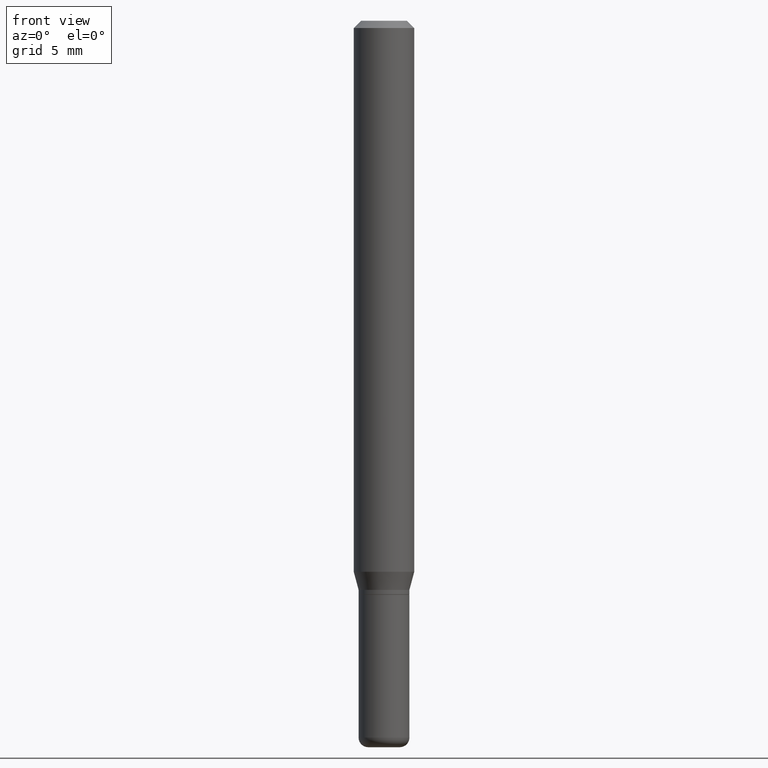
[diagram: clean part render]
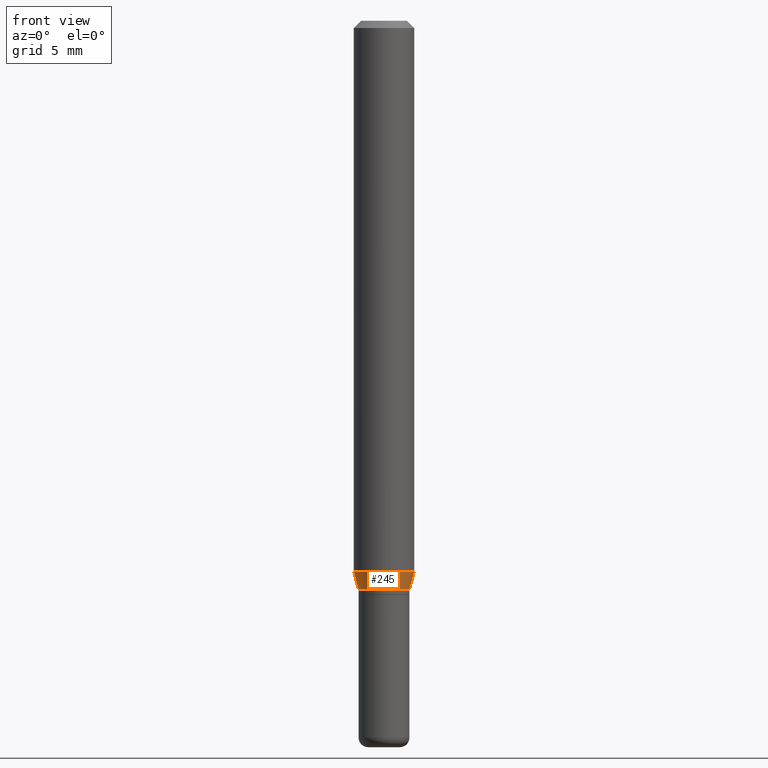
[diagram: same view with one face highlighted and labeled with its STEP entity id]
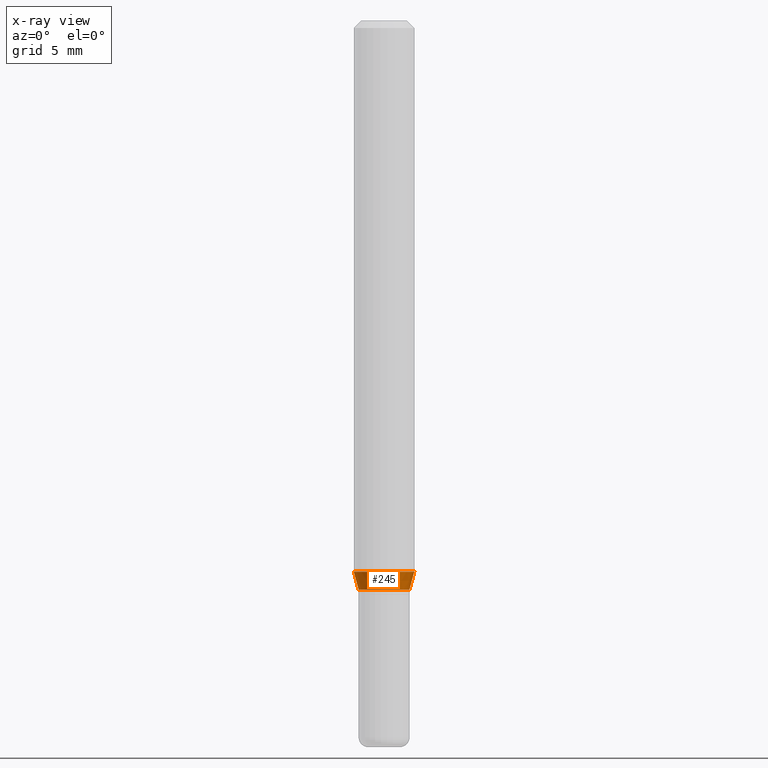
[diagram: x-ray of the same camera — body ghosted, the highlighted face saturated]
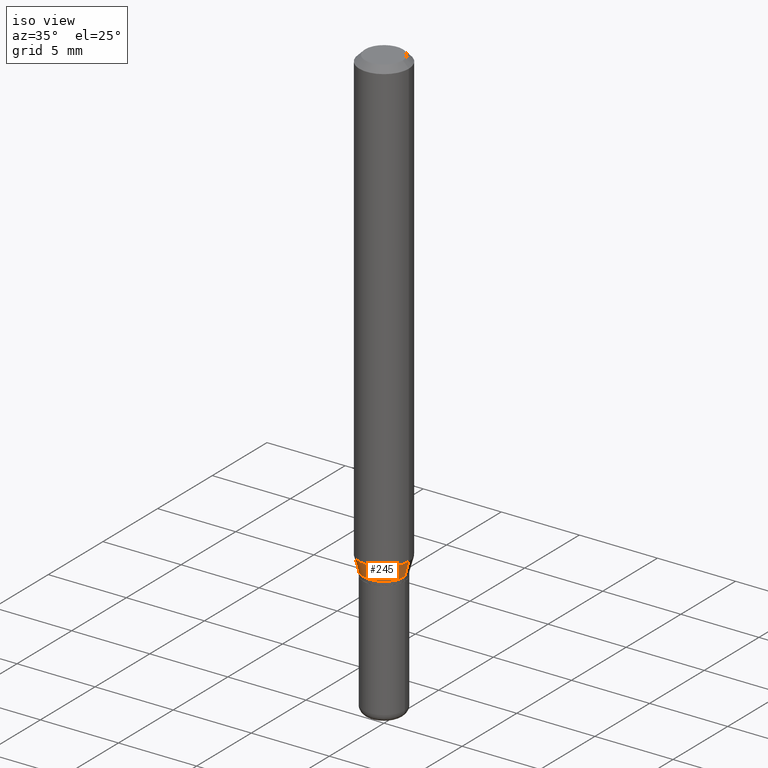
[diagram: same view with one face highlighted and labeled with its STEP entity id]
A machine part, front view. The second image highlights one B-rep face of the part: STEP entity #245.
The next image is the same camera in x-ray: the body ghosted, the highlighted face saturated — about 0% of this face is hidden behind the body in this view.
A second angle (iso view) of the same face is appended — the face is thin or edge-on in the first view.
In plain terms, the highlighted conical surface has half-angle 15 deg.
Its self-contained STEP definition (entity closure, byte-faithful):
#8 = EDGE_CURVE ( 'NONE', #424, #492, #353, .T. ) ;
#31 = CARTESIAN_POINT ( 'NONE',  ( -0.05249999999999999806, -3.628776571327433202E-15, -1.175000000000000266 ) ) ;
#37 = DIRECTION ( 'NONE',  ( -2.445468806185136597E-29, 3.491481338843145583E-15, 1.000000000000000000 ) ) ;
#40 = CARTESIAN_POINT ( 'NONE',  ( 0.05249999999999999806, -4.469096113719225841E-15, -1.175000000000000266 ) ) ;
#53 = EDGE_CURVE ( 'NONE', #424, #319, #157, .T. ) ;
#77 = DIRECTION ( 'NONE',  ( -0.2588190451025206285, 5.211531920934544731E-15, 0.9659258262890682012 ) ) ;
#80 = DIRECTION ( 'NONE',  ( 1.000000000000000000, -6.982962677686268288E-15, 0.000000000000000000 ) ) ;
#105 = DIRECTION ( 'NONE',  ( 1.000000000000000000, -6.982962677686268288E-15, 0.000000000000000000 ) ) ;
#111 = AXIS2_PLACEMENT_3D ( 'NONE', #445, #206, #449 ) ;
#119 = CARTESIAN_POINT ( 'NONE',  ( 2.873425847267535838E-29, -4.102490573140696681E-15, -1.175000000000000266 ) ) ;
#122 = CARTESIAN_POINT ( 'NONE',  ( -0.05249999999999999806, -3.729455636866644146E-15, -1.175000000000000266 ) ) ;
#151 = VECTOR ( 'NONE', #193, 39.37007874015748854 ) ;
#157 = LINE ( 'NONE', #122, #339 ) ;
#166 = AXIS2_PLACEMENT_3D ( 'NONE', #119, #37, #80 ) ;
#188 = DIRECTION ( 'NONE',  ( -2.445468806185136597E-29, 3.491481338843145583E-15, 1.000000000000000000 ) ) ;
#193 = DIRECTION ( 'NONE',  ( 0.2588190451025206285, 1.565188264969627095E-15, 0.9659258262890682012 ) ) ;
#206 = DIRECTION ( 'NONE',  ( -2.445468806185136597E-29, 3.491481338843145583E-15, 1.000000000000000000 ) ) ;
#211 = EDGE_CURVE ( 'NONE', #319, #347, #274, .T. ) ;
#215 = CONICAL_SURFACE ( 'NONE', #406, 0.05249999999999999806, 0.2617993877991493523 ) ;
#220 = ORIENTED_EDGE ( 'NONE', *, *, #427, .T. ) ;
#226 = FACE_OUTER_BOUND ( 'NONE', #290, .T. ) ;
#245 = ADVANCED_FACE ( 'NONE', ( #226 ), #215, .T. ) ;
#257 = CARTESIAN_POINT ( 'NONE',  ( -0.06250000000000000000, -3.528097505788221863E-15, -1.137679491924311392 ) ) ;
#269 = LINE ( 'NONE', #40, #151 ) ;
#274 = CIRCLE ( 'NONE', #111, 0.06250000000000000000 ) ;
#290 = EDGE_LOOP ( 'NONE', ( #374, #345, #220, #463 ) ) ;
#304 = CARTESIAN_POINT ( 'NONE',  ( 0.06250000000000000000, -4.408621882993675754E-15, -1.137679491924311392 ) ) ;
#319 = VERTEX_POINT ( 'NONE', #257 ) ;
#339 = VECTOR ( 'NONE', #77, 39.37007874015748854 ) ;
#345 = ORIENTED_EDGE ( 'NONE', *, *, #8, .T. ) ;
#347 = VERTEX_POINT ( 'NONE', #304 ) ;
#353 = CIRCLE ( 'NONE', #166, 0.05249999999999999806 ) ;
#374 = ORIENTED_EDGE ( 'NONE', *, *, #53, .F. ) ;
#400 = CARTESIAN_POINT ( 'NONE',  ( 0.05249999999999999806, -4.469096113719225841E-15, -1.175000000000000266 ) ) ;
#406 = AXIS2_PLACEMENT_3D ( 'NONE', #462, #188, #105 ) ;
#424 = VERTEX_POINT ( 'NONE', #31 ) ;
#427 = EDGE_CURVE ( 'NONE', #492, #347, #269, .T. ) ;
#445 = CARTESIAN_POINT ( 'NONE',  ( 2.782159708937458673E-29, -3.972186715638284085E-15, -1.137679491924311392 ) ) ;
#449 = DIRECTION ( 'NONE',  ( 1.000000000000000000, -6.982962677686270655E-15, 0.000000000000000000 ) ) ;
#462 = CARTESIAN_POINT ( 'NONE',  ( 2.873425847267535838E-29, -4.102490573140696681E-15, -1.175000000000000266 ) ) ;
#463 = ORIENTED_EDGE ( 'NONE', *, *, #211, .F. ) ;
#492 = VERTEX_POINT ( 'NONE', #400 ) ;